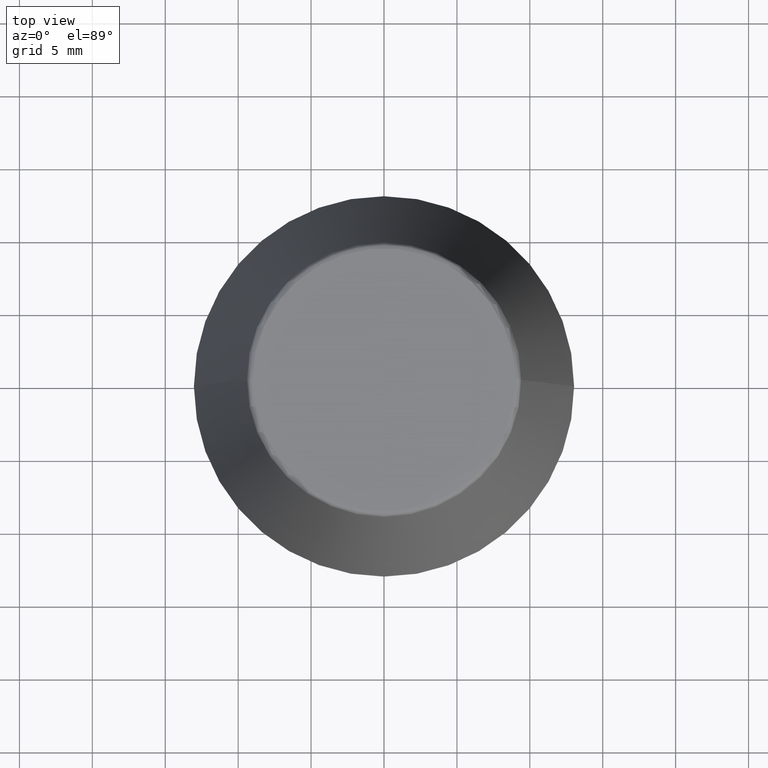
[diagram: clean part render]
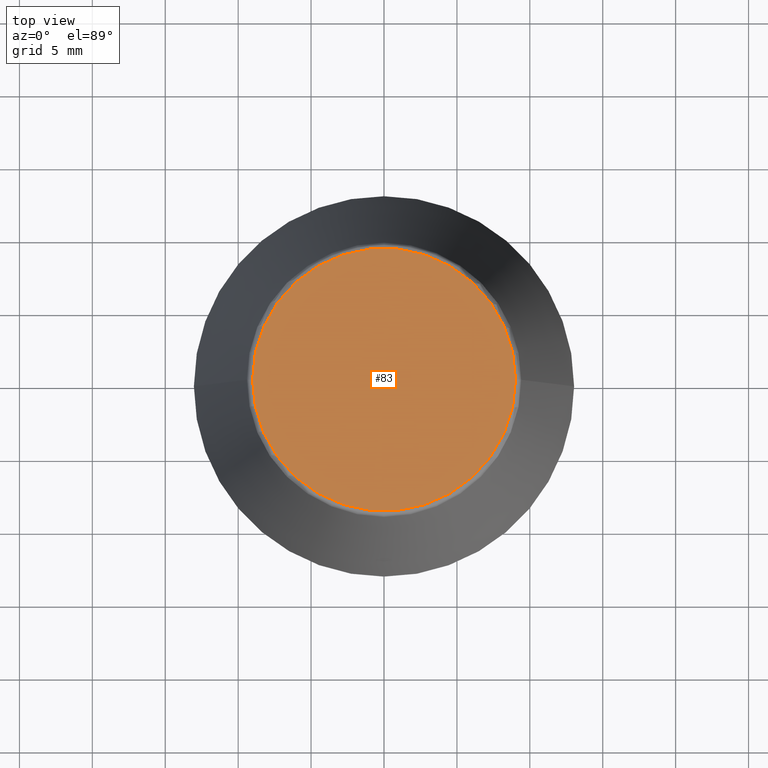
[diagram: same view with one face highlighted and labeled with its STEP entity id]
A machine part, top view. The second image highlights one B-rep face of the part: STEP entity #83.
In plain terms, the highlighted planar face has unit normal (0, 0, -1).
Its self-contained STEP definition (entity closure, byte-faithful):
#13 = VERTEX_POINT ( 'NONE', #373 ) ;
#37 = CARTESIAN_POINT ( 'NONE',  ( -9.012603057622234500, 1.127980121063915600E-015, 34.00000000000000000 ) ) ;
#76 = DIRECTION ( 'NONE',  ( -1.000000000000000000, 0.0000000000000000000, -0.0000000000000000000 ) ) ;
#83 = ADVANCED_FACE ( 'NONE', ( #256 ), #364, .F. ) ;
#105 = CARTESIAN_POINT ( 'NONE',  ( 0.0000000000000000000, 9.012603057622234500, 34.00000000000000000 ) ) ;
#153 = CARTESIAN_POINT ( 'NONE',  ( 0.0000000000000000000, 0.0000000000000000000, 34.00000000000000000 ) ) ;
#158 = ORIENTED_EDGE ( 'NONE', *, *, #348, .T. ) ;
#173 = VERTEX_POINT ( 'NONE', #37 ) ;
#178 = DIRECTION ( 'NONE',  ( -0.0000000000000000000, -0.0000000000000000000, 1.000000000000000000 ) ) ;
#183 = EDGE_CURVE ( 'NONE', #13, #173, #351, .T. ) ;
#188 = DIRECTION ( 'NONE',  ( 0.0000000000000000000, 0.0000000000000000000, -1.000000000000000000 ) ) ;
#226 = AXIS2_PLACEMENT_3D ( 'NONE', #153, #360, #238 ) ;
#238 = DIRECTION ( 'NONE',  ( 1.000000000000000000, 0.0000000000000000000, 0.0000000000000000000 ) ) ;
#256 = FACE_OUTER_BOUND ( 'NONE', #345, .T. ) ;
#262 = AXIS2_PLACEMENT_3D ( 'NONE', #105, #188, #76 ) ;
#280 = AXIS2_PLACEMENT_3D ( 'NONE', #319, #178, #349 ) ;
#319 = CARTESIAN_POINT ( 'NONE',  ( 0.0000000000000000000, 0.0000000000000000000, 34.00000000000000000 ) ) ;
#338 = ORIENTED_EDGE ( 'NONE', *, *, #183, .T. ) ;
#345 = EDGE_LOOP ( 'NONE', ( #338, #158 ) ) ;
#348 = EDGE_CURVE ( 'NONE', #173, #13, #382, .T. ) ;
#349 = DIRECTION ( 'NONE',  ( 1.000000000000000000, 0.0000000000000000000, 0.0000000000000000000 ) ) ;
#351 = CIRCLE ( 'NONE', #226, 9.012603057622234500 ) ;
#360 = DIRECTION ( 'NONE',  ( -0.0000000000000000000, -0.0000000000000000000, 1.000000000000000000 ) ) ;
#364 = PLANE ( 'NONE',  #262 ) ;
#373 = CARTESIAN_POINT ( 'NONE',  ( 9.012603057622234500, 0.0000000000000000000, 34.00000000000000000 ) ) ;
#382 = CIRCLE ( 'NONE', #280, 9.012603057622234500 ) ;